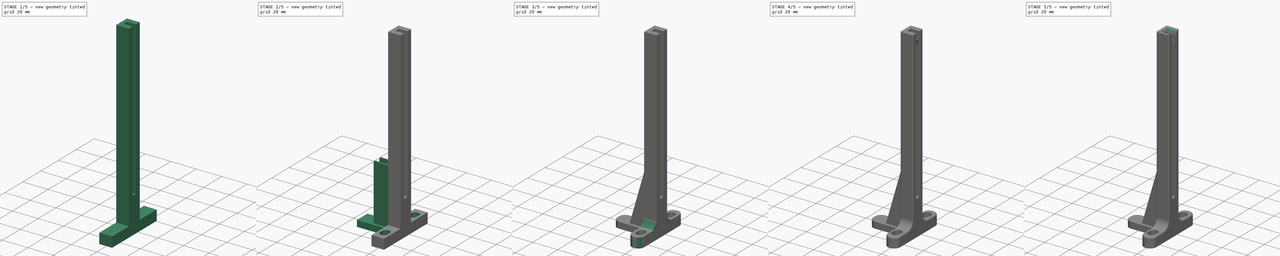
[diagram: build sequence overview — one tinted view per stage of 5, left to right]
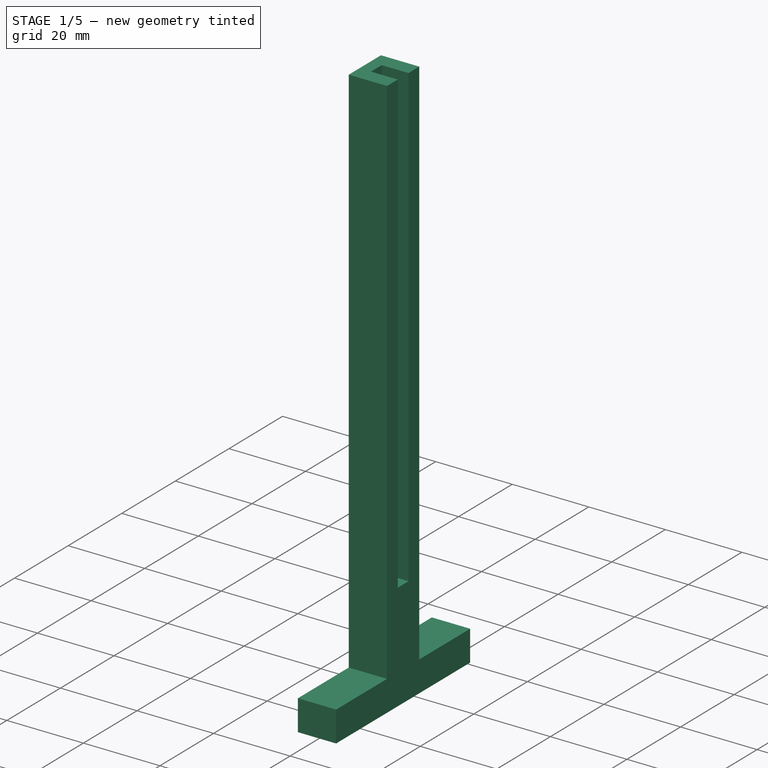
[diagram: stage 1 of 5 — iso view after this stage's code; geometry added in this stage tinted green]
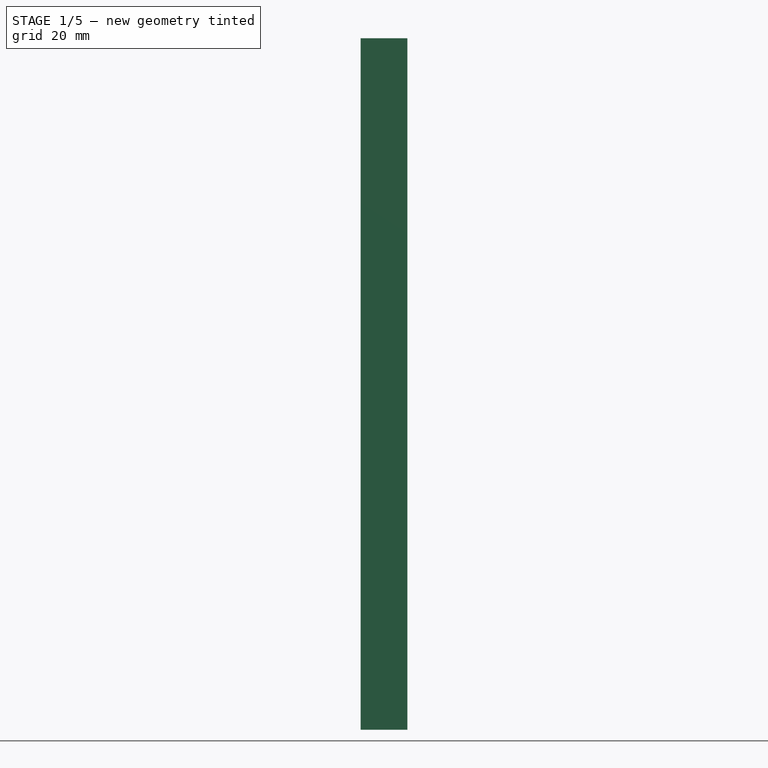
[diagram: stage 1 of 5 — front view after this stage's code; geometry added in this stage tinted green]
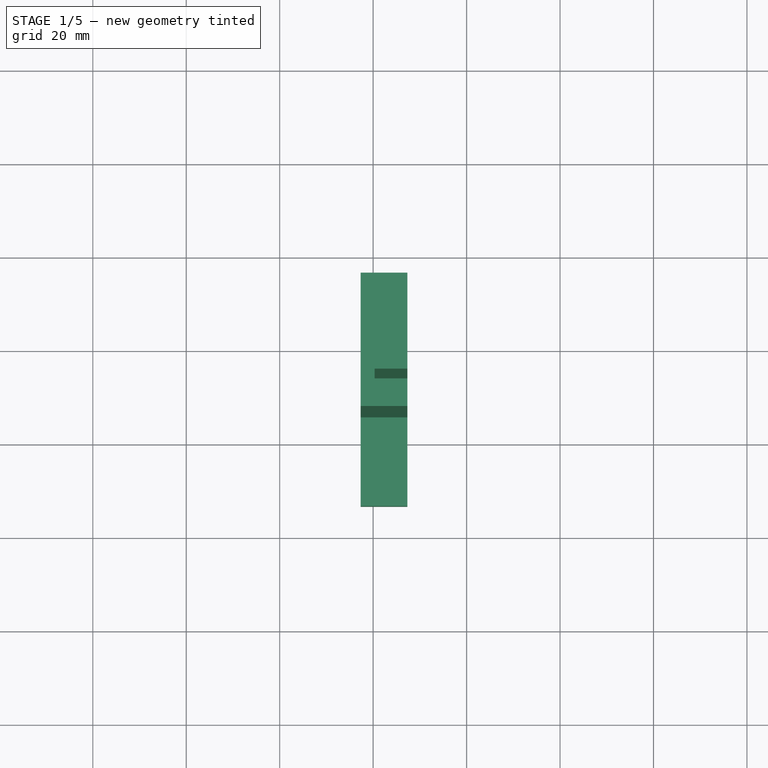
[diagram: stage 1 of 5 — top view after this stage's code; geometry added in this stage tinted green]
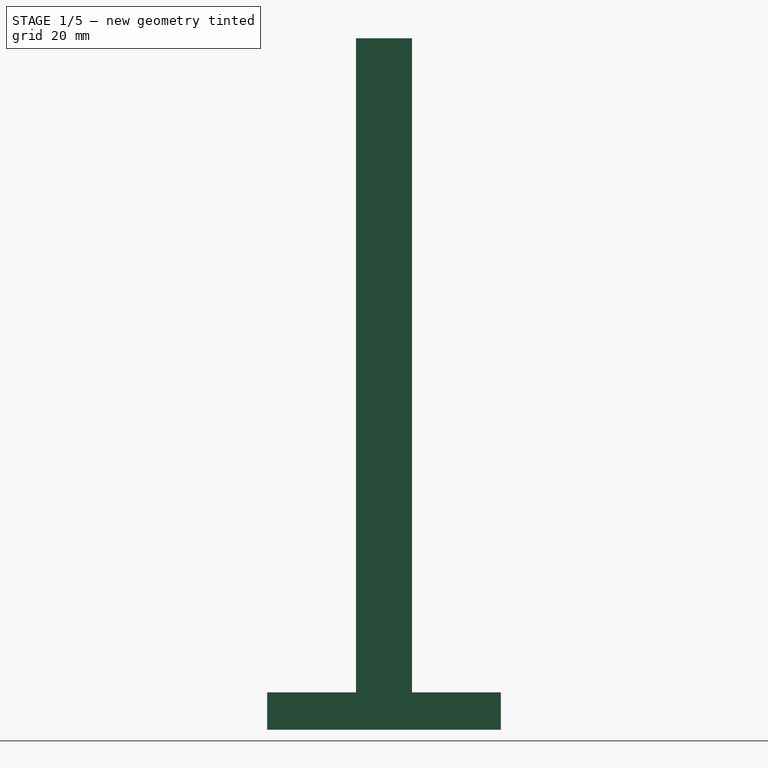
[diagram: stage 1 of 5 — right view after this stage's code; geometry added in this stage tinted green]
FCSTD DOCUMENT  (FreeCAD 0.19R24415 (Git))
Label: FCC22
License: All rights reserved
LicenseURL: http://en.wikipedia.org/wiki/All_rights_reserved
objects: Sketcher::SketchObject×8, PartDesign::Fillet×7, PartDesign::Pad×5, PartDesign::Pocket×3, PartDesign::Body×1
note: 39 computed .brp shape members not serialized (recipe doc carries the construction recipe); baked Part::Feature solids carry a one-line shape summary decoded from their .brp

FEATURE [Sketcher::SketchObject] Sketch
  FullyConstrained = false
  MapMode = 5
  Support = -> [XY_Plane]
  sketch-geometry (4):
    g0: LineSegment StartX=-22.6766 StartY=36.728 StartZ=0 EndX=-12.6766 EndY=36.728 EndZ=0
    g1: LineSegment StartX=-12.6766 StartY=36.728 StartZ=0 EndX=-12.6766 EndY=-13.272 EndZ=0
    g2: LineSegment StartX=-12.6766 StartY=-13.272 StartZ=0 EndX=-22.6766 EndY=-13.272 EndZ=0
    g3: LineSegment StartX=-22.6766 StartY=-13.272 StartZ=0 EndX=-22.6766 EndY=36.728 EndZ=0
  constraints (10):
    c: Coincident(g0,g1)
    c: Coincident(g1,g2)
    c: Coincident(g2,g3)
    c: Coincident(g3,g0)
    c: Horizontal(g0)
    c: Horizontal(g2)
    c: Vertical(g1)
    c: Vertical(g3)
    c: DistanceY(g3,g3) = 50
    c: DistanceX(g0,g0) = 10
FEATURE [PartDesign::Pad] Pad
  Direction = (1,1,1)
  Length = 8
  Length2 = 100
  Profile = -> Sketch
  Type = 0
FEATURE [Sketcher::SketchObject] Sketch001
  ExternalGeometry = -> [Pad]
  FullyConstrained = true
  MapMode = 5
  Placement = pos=(0,0,8) rot=(0,0,1;0rad)
  Support = -> [Pad]
  sketch-geometry (4):
    g0: LineSegment StartX=-22.6766 StartY=17.728 StartZ=0 EndX=-12.6766 EndY=17.728 EndZ=0
    g1: LineSegment StartX=-12.6766 StartY=17.728 StartZ=0 EndX=-12.6766 EndY=5.728 EndZ=0
    g2: LineSegment StartX=-12.6766 StartY=5.728 StartZ=0 EndX=-22.6766 EndY=5.728 EndZ=0
    g3: LineSegment StartX=-22.6766 StartY=5.728 StartZ=0 EndX=-22.6766 EndY=17.728 EndZ=0
  constraints (12):
    c: Coincident(g0,g1)
    c: Coincident(g1,g2)
    c: Coincident(g2,g3)
    c: Coincident(g3,g0)
    c: Horizontal(g0)
    c: Horizontal(g2)
    c: Vertical(g1)
    c: Vertical(g3)
    c: PointOnObject(g0,g-3)
    c: PointOnObject(g1,g-4)
    c: DistanceY(g0,g-5) = 19
    c: DistanceY(g-6,g2) = 19
FEATURE [PartDesign::Pad] Pad001
  BaseFeature = -> Pad
  Direction = (1,1,1)
  Length = 140
  Length2 = 100
  Profile = -> Sketch001
  Type = 0
FEATURE [Sketcher::SketchObject] Sketch002
  ExternalGeometry = -> [Pad001]
  FullyConstrained = true
  MapMode = 5
  Placement = pos=(-12.6766,0,0) rot=(0.57735,0.57735,0.57735;2.0944rad)
  Support = -> [Pad001]
  sketch-geometry (4):
    g0: LineSegment StartX=9.728 StartY=148 StartZ=0 EndX=13.728 EndY=148 EndZ=0
    g1: LineSegment StartX=13.728 StartY=148 StartZ=0 EndX=13.728 EndY=28 EndZ=0
    g2: LineSegment StartX=13.728 StartY=28 StartZ=0 EndX=9.728 EndY=28 EndZ=0
    g3: LineSegment StartX=9.728 StartY=28 StartZ=0 EndX=9.728 EndY=148 EndZ=0
  constraints (13):
    c: Coincident(g0,g1)
    c: Coincident(g1,g2)
    c: Coincident(g2,g3)
    c: Coincident(g3,g0)
    c: Horizontal(g0)
    c: Horizontal(g2)
    c: Vertical(g1)
    c: Vertical(g3)
    c: PointOnObject(g0,g-3)
    c: DistanceX(g-6,g0) = 4
    c: DistanceX(g0,g-5) = 4
    c: DistanceX(g-6,g-5) = 12
    c: DistanceY(g2,g-6) = -20
FEATURE [PartDesign::Pocket] Pocket
  BaseFeature = -> Pad001
  Length = 7
  Length2 = 100
  Profile = -> Sketch002
  Type = 0
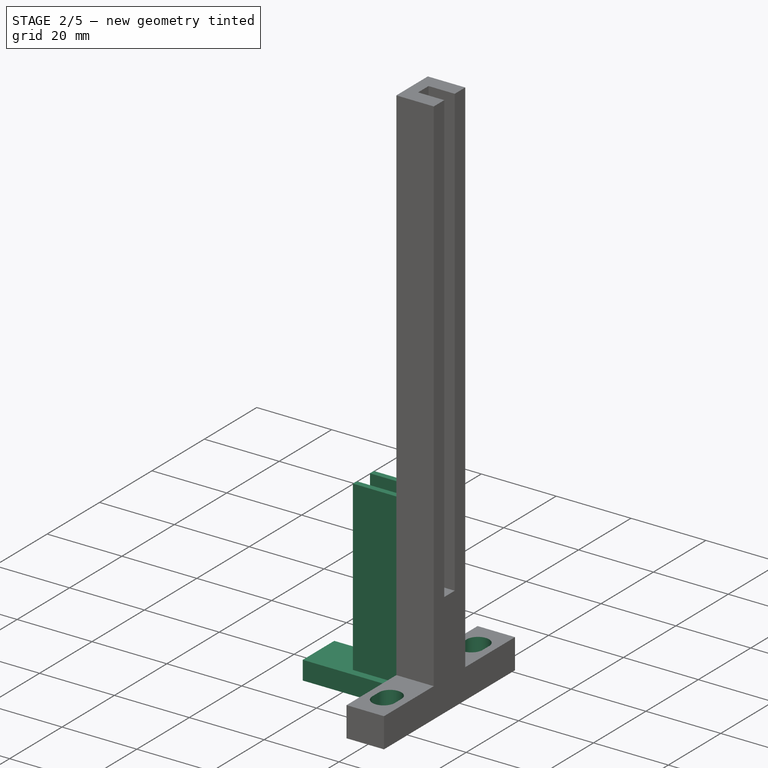
[diagram: stage 2 of 5 — iso view after this stage's code; geometry added in this stage tinted green]
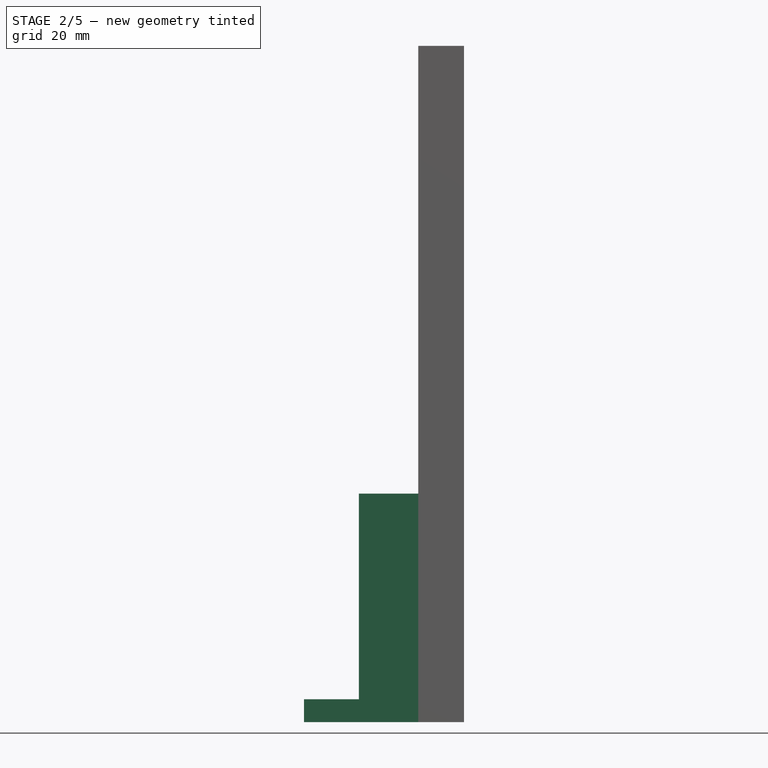
[diagram: stage 2 of 5 — front view after this stage's code; geometry added in this stage tinted green]
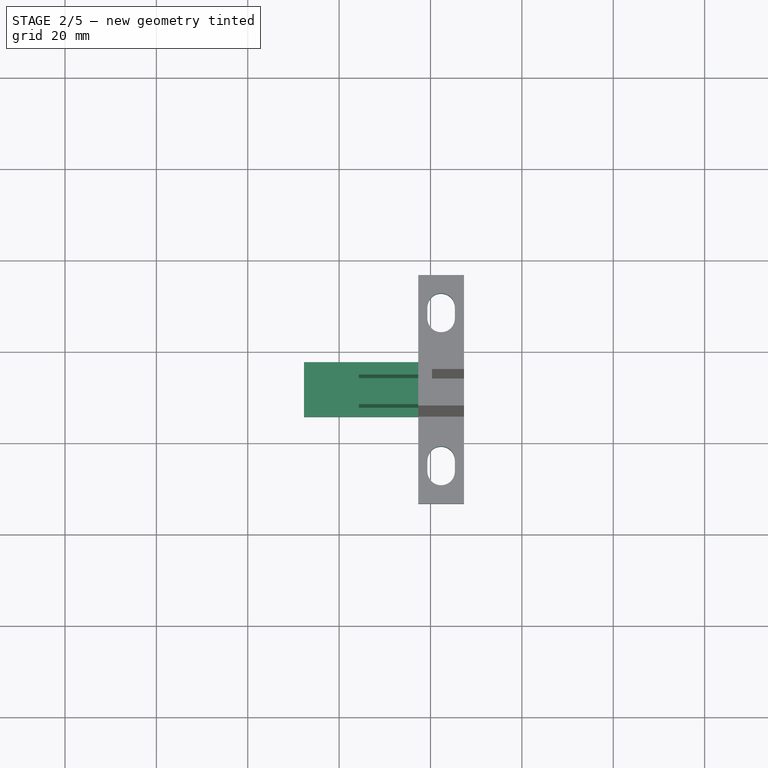
[diagram: stage 2 of 5 — top view after this stage's code; geometry added in this stage tinted green]
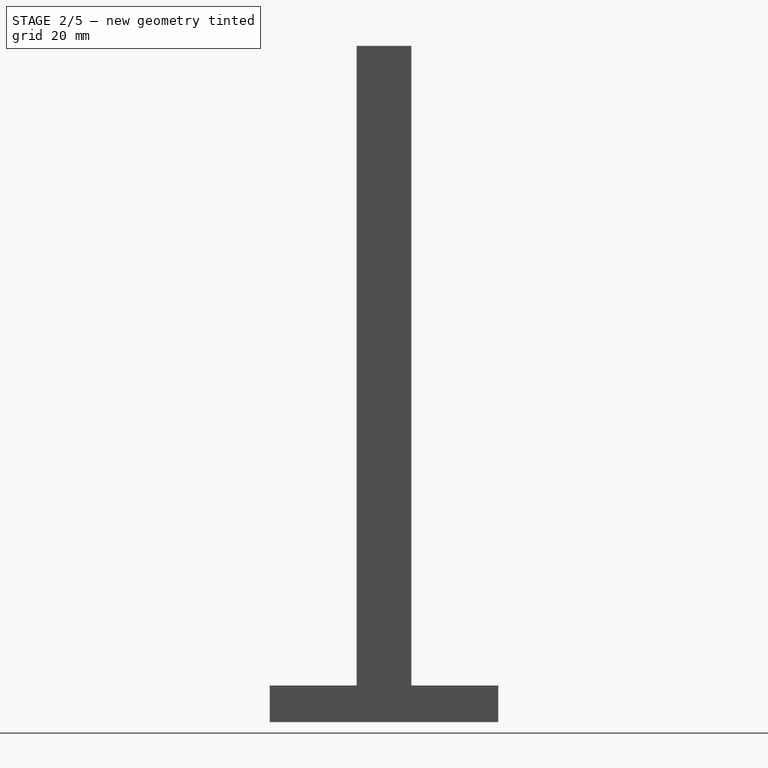
[diagram: stage 2 of 5 — right view after this stage's code; geometry added in this stage tinted green]
FEATURE [Sketcher::SketchObject] Sketch003
  ExternalGeometry = -> [Pocket]
  FullyConstrained = true
  MapMode = 5
  Placement = pos=(0,0,8) rot=(0,0,1;0rad)
  Support = -> [Pocket]
  sketch-geometry (11):
    g0: GeomPoint X=-22.6766 Y=11.728 Z=0
    g1: GeomPoint X=-12.6766 Y=11.728 Z=0
    g2: GeomPoint X=-17.6766 Y=11.728 Z=0
    g3: ArcOfCircle CenterX=-17.6766 CenterY=-3.772 CenterZ=0 NormalX=0 NormalY=0 NormalZ=1 AngleXU=0 Radius=3 StartAngle=-2.7e-15 EndAngle=3.14159
    g4: ArcOfCircle CenterX=-17.6766 CenterY=-6.272 CenterZ=0 NormalX=0 NormalY=0 NormalZ=1 AngleXU=0 Radius=3 StartAngle=3.14159 EndAngle=6.28319
    g5: LineSegment StartX=-20.6766 StartY=-3.772 StartZ=0 EndX=-20.6766 EndY=-6.272 EndZ=0
    g6: LineSegment StartX=-14.6766 StartY=-3.772 StartZ=0 EndX=-14.6766 EndY=-6.272 EndZ=0
    g7: ArcOfCircle CenterX=-17.6766 CenterY=29.728 CenterZ=0 NormalX=0 NormalY=0 NormalZ=1 AngleXU=0 Radius=3 StartAngle=1.9e-15 EndAngle=3.14159
    g8: ArcOfCircle CenterX=-17.6766 CenterY=27.228 CenterZ=0 NormalX=0 NormalY=0 NormalZ=1 AngleXU=0 Radius=3 StartAngle=3.14159 EndAngle=6.28319
    g9: LineSegment StartX=-20.6766 StartY=29.728 StartZ=0 EndX=-20.6766 EndY=27.228 EndZ=0
    g10: LineSegment StartX=-14.6766 StartY=29.728 StartZ=0 EndX=-14.6766 EndY=27.228 EndZ=0
  constraints (22):
    c: Symmetric(g-6,g-6,g0)
    c: Symmetric(g-5,g-5,g1)
    c: Symmetric(g0,g1,g2)
    c: Tangent(g3,g6) = 1.5708
    c: Tangent(g3,g5) = -1.5708
    c: Tangent(g5,g4) = -1.5708
    c: Tangent(g6,g4) = 1.5708
    c: Vertical(g5)
    c: Equal(g3,g4)
    c: Tangent(g7,g10) = 1.5708
    c: Tangent(g7,g9) = -1.5708
    c: Tangent(g9,g8) = -1.5708
    c: Tangent(g10,g8) = 1.5708
    c: Vertical(g9)
    c: Equal(g7,g8)
    c: DistanceY(g3,g8) = 31
    c: DistanceY(g4,g7) = 36
    c: Equal(g10,g6)
    c: Vertical(g8,g2)
    c: DistanceX(g7,g7) = 6
    c: DistanceX(g4,g4) = 6
    c: Symmetric(g8,g3,g2)
FEATURE [PartDesign::Pocket] Pocket001
  BaseFeature = -> Pocket
  Length = 5
  Length2 = 100
  Profile = -> Sketch003
  Type = 1
FEATURE [Sketcher::SketchObject] Sketch004
  ExternalGeometry = -> [Pocket001]
  FullyConstrained = true
  MapMode = 5
  Placement = pos=(-22.6766,0,0) rot=(0.57735,-0.57735,-0.57735;2.0944rad)
  Support = -> [Pocket001]
  sketch-geometry (4):
    g0: LineSegment StartX=-17.728 StartY=5 StartZ=0 EndX=-5.728 EndY=5 EndZ=0
    g1: LineSegment StartX=-5.728 StartY=5 StartZ=0 EndX=-5.728 EndY=0 EndZ=0
    g2: LineSegment StartX=-5.728 StartY=0 StartZ=0 EndX=-17.728 EndY=0 EndZ=0
    g3: LineSegment StartX=-17.728 StartY=0 StartZ=0 EndX=-17.728 EndY=5 EndZ=0
  constraints (12):
    c: Coincident(g0,g1)
    c: Coincident(g1,g2)
    c: Coincident(g2,g3)
    c: Coincident(g3,g0)
    c: Horizontal(g0)
    c: Horizontal(g2)
    c: Vertical(g1)
    c: Vertical(g3)
    c: PointOnObject(g2,g-1)
    c: DistanceY(g1,g0) = 5
    c: Vertical(g-3,g0)
    c: Vertical(g-3,g0)
FEATURE [PartDesign::Pad] Pad002
  BaseFeature = -> Pocket001
  Direction = (1,1,1)
  Length = 25
  Length2 = 100
  Profile = -> Sketch004
  Type = 0
FEATURE [Sketcher::SketchObject] Sketch005
  ExternalGeometry = -> [Pad002]
  FullyConstrained = true
  MapMode = 5
  Placement = pos=(-22.6766,0,0) rot=(0.57735,-0.57735,-0.57735;2.0944rad)
  Support = -> [Pad002]
  sketch-geometry (8):
    g0: LineSegment StartX=-9.228 StartY=50 StartZ=0 EndX=-7.728 EndY=50 EndZ=0
    g1: LineSegment StartX=-7.728 StartY=50 StartZ=0 EndX=-7.728 EndY=5 EndZ=0
    g2: LineSegment StartX=-7.728 StartY=5 StartZ=0 EndX=-9.228 EndY=5 EndZ=0
    g3: LineSegment StartX=-9.228 StartY=5 StartZ=0 EndX=-9.228 EndY=50 EndZ=0
    g4: LineSegment StartX=-15.728 StartY=50 StartZ=0 EndX=-14.228 EndY=50 EndZ=0
    g5: LineSegment StartX=-14.228 StartY=50 StartZ=0 EndX=-14.228 EndY=5 EndZ=0
    g6: LineSegment StartX=-14.228 StartY=5 StartZ=0 EndX=-15.728 EndY=5 EndZ=0
    g7: LineSegment StartX=-15.728 StartY=5 StartZ=0 EndX=-15.728 EndY=50 EndZ=0
  constraints (24):
    c: Coincident(g0,g1)
    c: Coincident(g1,g2)
    c: Coincident(g2,g3)
    c: Coincident(g3,g0)
    c: Horizontal(g0)
    c: Horizontal(g2)
    c: Vertical(g1)
    c: Vertical(g3)
    c: Coincident(g4,g5)
    c: Coincident(g5,g6)
    c: Coincident(g6,g7)
    c: Coincident(g7,g4)
    c: Horizontal(g4)
    c: Horizontal(g6)
    c: Vertical(g5)
    c: Vertical(g7)
    c: Horizontal(g4,g0)
    c: DistanceX(g-3,g6) = 2
    c: DistanceX(g4,g4) = 1.5
    c: DistanceX(g0,g0) = 1.5
    c: DistanceY(g5,g4) = 45
    c: PointOnObject(g5,g-4)
    c: PointOnObject(g1,g-4)
    c: DistanceX(g1,g-4) = 2
FEATURE [PartDesign::Pad] Pad003
  BaseFeature = -> Pad002
  Direction = (1,1,1)
  Length = 13
  Length2 = 100
  Profile = -> Sketch005
  Type = 0
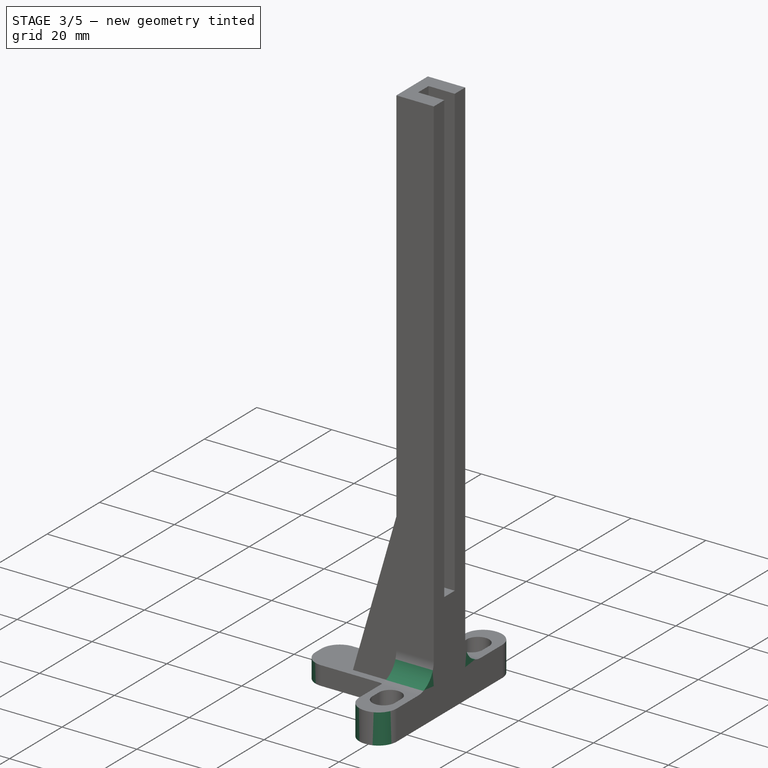
[diagram: stage 3 of 5 — iso view after this stage's code; geometry added in this stage tinted green]
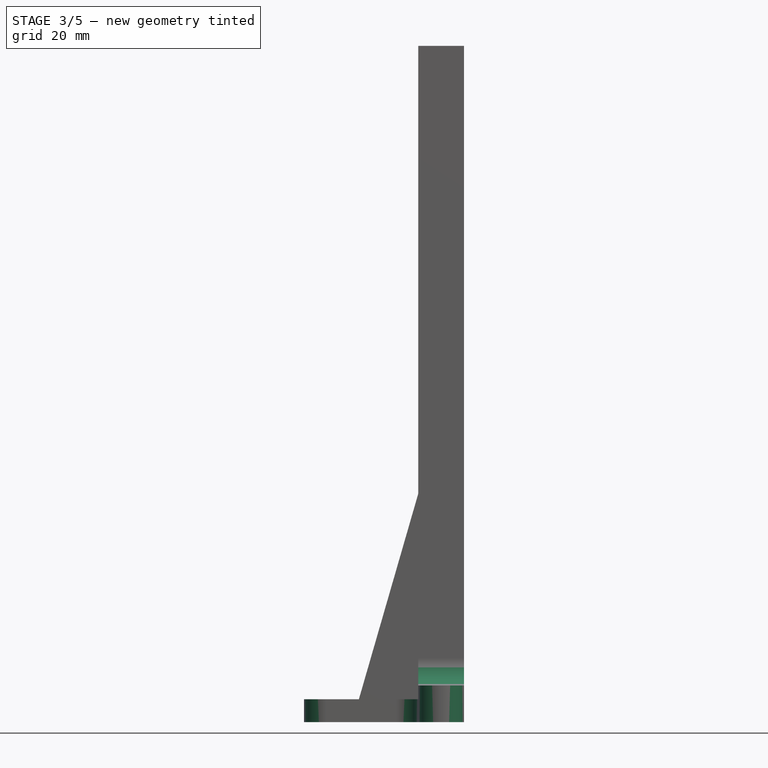
[diagram: stage 3 of 5 — front view after this stage's code; geometry added in this stage tinted green]
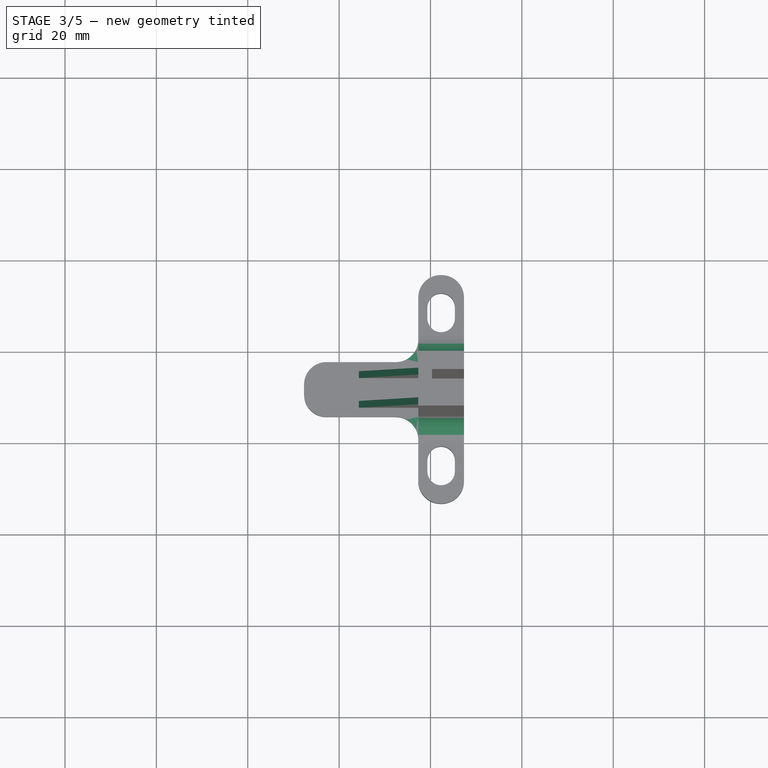
[diagram: stage 3 of 5 — top view after this stage's code; geometry added in this stage tinted green]
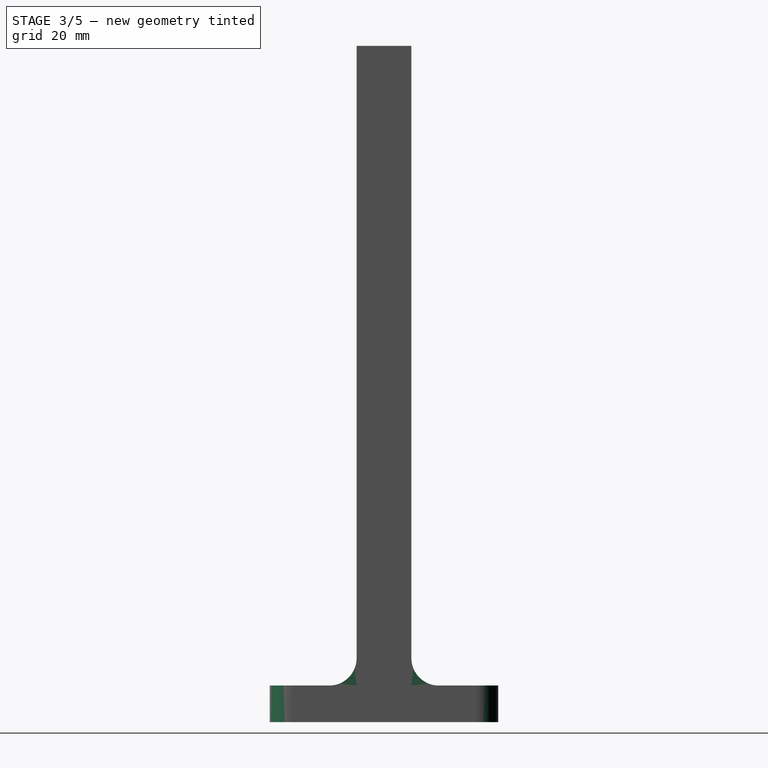
[diagram: stage 3 of 5 — right view after this stage's code; geometry added in this stage tinted green]
FEATURE [Sketcher::SketchObject] Sketch006
  ExternalGeometry = -> [Pad003]
  FullyConstrained = true
  MapMode = 5
  Placement = pos=(0,7.728,0) rot=(1,0,0;1.5708rad)
  Support = -> [Pad003]
  sketch-geometry (3):
    g0: LineSegment StartX=-35.6766 StartY=5 StartZ=0 EndX=-22.6766 EndY=50 EndZ=0
    g1: LineSegment StartX=-35.6766 StartY=50 StartZ=0 EndX=-22.6766 EndY=50 EndZ=0
    g2: LineSegment StartX=-35.6766 StartY=50 StartZ=0 EndX=-35.6766 EndY=5 EndZ=0
  constraints (6):
    c: Coincident(g0,g-4)
    c: Coincident(g0,g-3)
    c: Coincident(g1,g-4)
    c: Coincident(g1,g0)
    c: Coincident(g2,g1)
    c: Coincident(g2,g0)
FEATURE [PartDesign::Pocket] Pocket002
  BaseFeature = -> Pad003
  Length = 5
  Length2 = 100
  Profile = -> Sketch006
  Type = 1
FEATURE [PartDesign::Fillet] Fillet
  Base = -> Pocket002 [Edge2,Edge1,Edge6,Edge37,Edge79,Edge57,Edge42,Edge11]
  BaseFeature = -> Pocket002
  Radius = 4.9
  SupportTransform = false
FEATURE [PartDesign::Fillet] Fillet001
  Base = -> Fillet [Edge86,Edge29]
  BaseFeature = -> Fillet
  Radius = 6
  SupportTransform = false
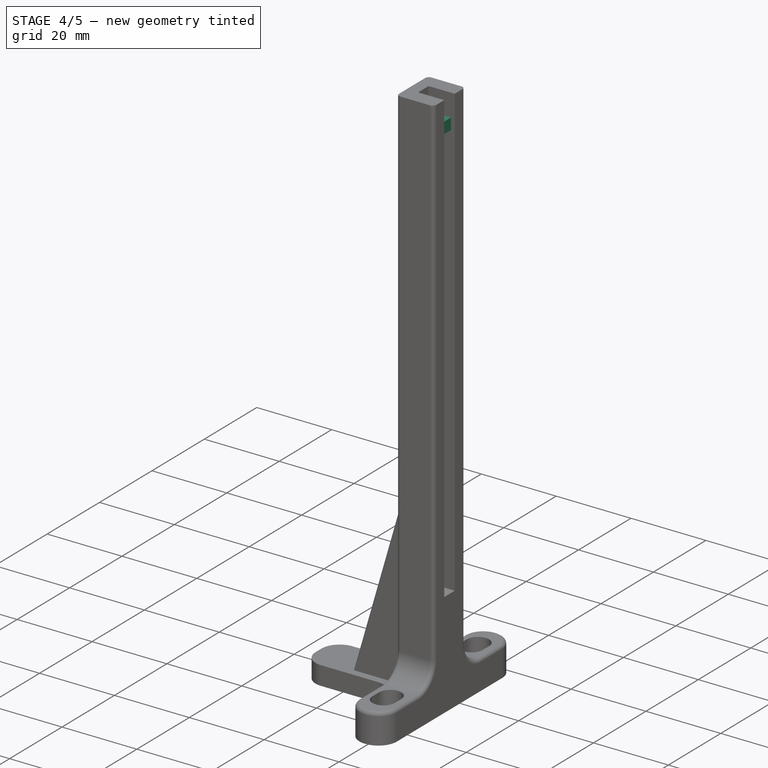
[diagram: stage 4 of 5 — iso view after this stage's code; geometry added in this stage tinted green]
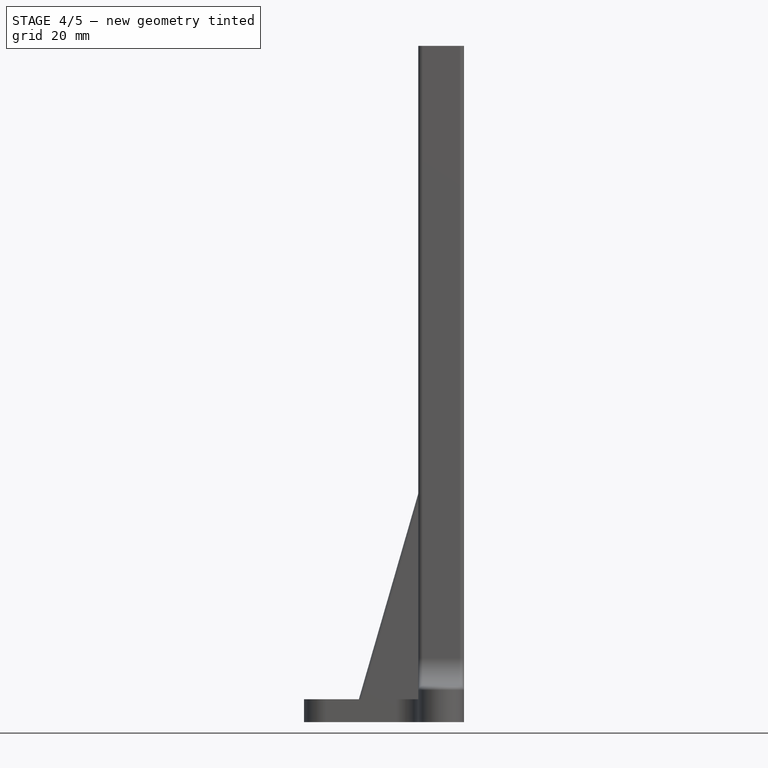
[diagram: stage 4 of 5 — front view after this stage's code; geometry added in this stage tinted green]
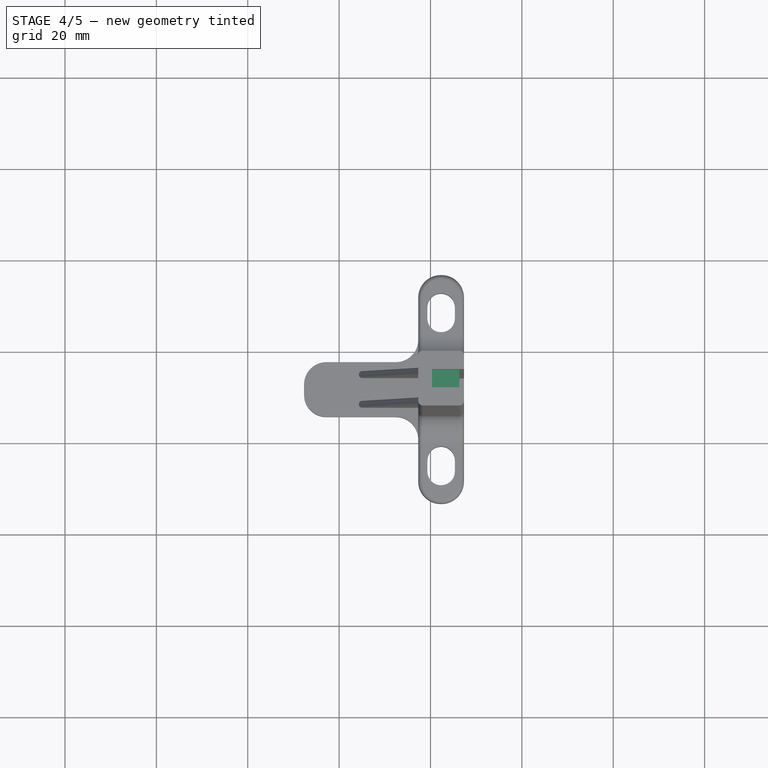
[diagram: stage 4 of 5 — top view after this stage's code; geometry added in this stage tinted green]
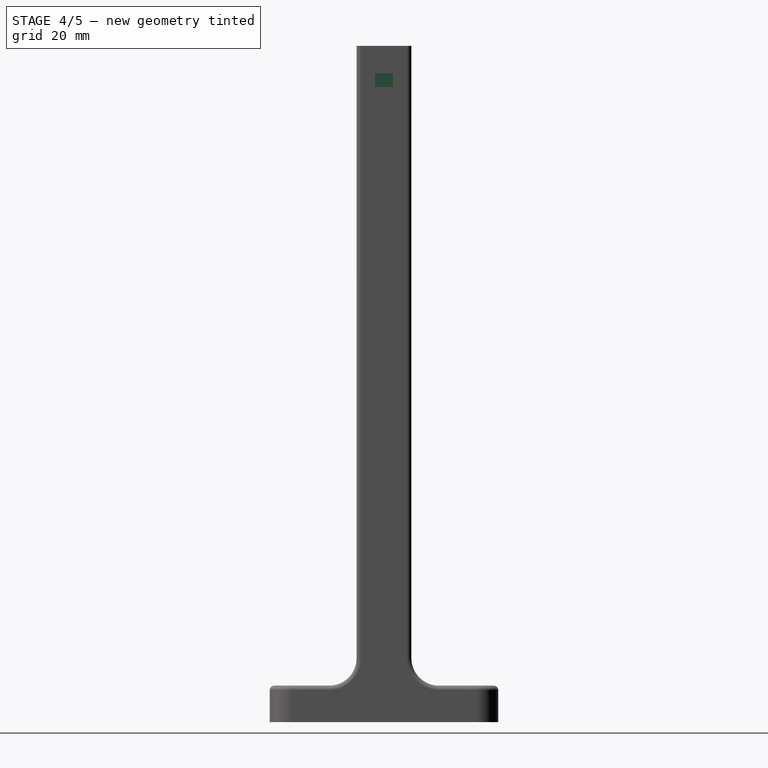
[diagram: stage 4 of 5 — right view after this stage's code; geometry added in this stage tinted green]
FEATURE [PartDesign::Fillet] Fillet002
  Base = -> Fillet001 [Edge130,Edge131,Edge108,Edge56]
  BaseFeature = -> Fillet001
  Radius = 0.7
  SupportTransform = false
FEATURE [PartDesign::Fillet] Fillet003
  Base = -> Fillet002 [Edge28,Edge32]
  BaseFeature = -> Fillet002
  Radius = 1
  SupportTransform = false
FEATURE [Sketcher::SketchObject] Sketch007
  ExternalGeometry = -> [Fillet003]
  FullyConstrained = true
  MapMode = 5
  Placement = pos=(-19.6766,0,0) rot=(0.57735,0.57735,0.57735;2.0944rad)
  Support = -> [Fillet003]
  sketch-geometry (4):
    g0: LineSegment StartX=9.728 StartY=142 StartZ=0 EndX=13.728 EndY=142 EndZ=0
    g1: LineSegment StartX=13.728 StartY=142 StartZ=0 EndX=13.728 EndY=139 EndZ=0
    g2: LineSegment StartX=13.728 StartY=139 StartZ=0 EndX=9.728 EndY=139 EndZ=0
    g3: LineSegment StartX=9.728 StartY=139 StartZ=0 EndX=9.728 EndY=142 EndZ=0
  constraints (12):
    c: Coincident(g0,g1)
    c: Coincident(g1,g2)
    c: Coincident(g2,g3)
    c: Coincident(g3,g0)
    c: Horizontal(g0)
    c: Horizontal(g2)
    c: Vertical(g1)
    c: Vertical(g3)
    c: PointOnObject(g0,g-4)
    c: PointOnObject(g1,g-3)
    c: DistanceY(g1,g1) = 3
    c: DistanceY(g0,g-3) = 6
FEATURE [PartDesign::Pad] Pad004
  BaseFeature = -> Fillet003
  Direction = (1,1,1)
  Length = 6
  Length2 = 100
  Profile = -> Sketch007
  Type = 0
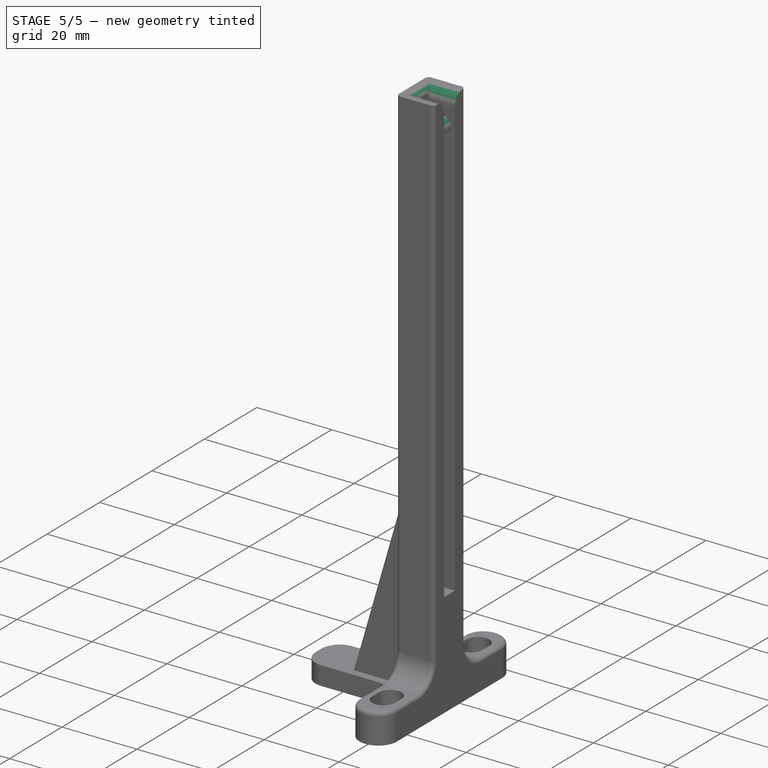
[diagram: stage 5 of 5 — iso view after this stage's code; geometry added in this stage tinted green]
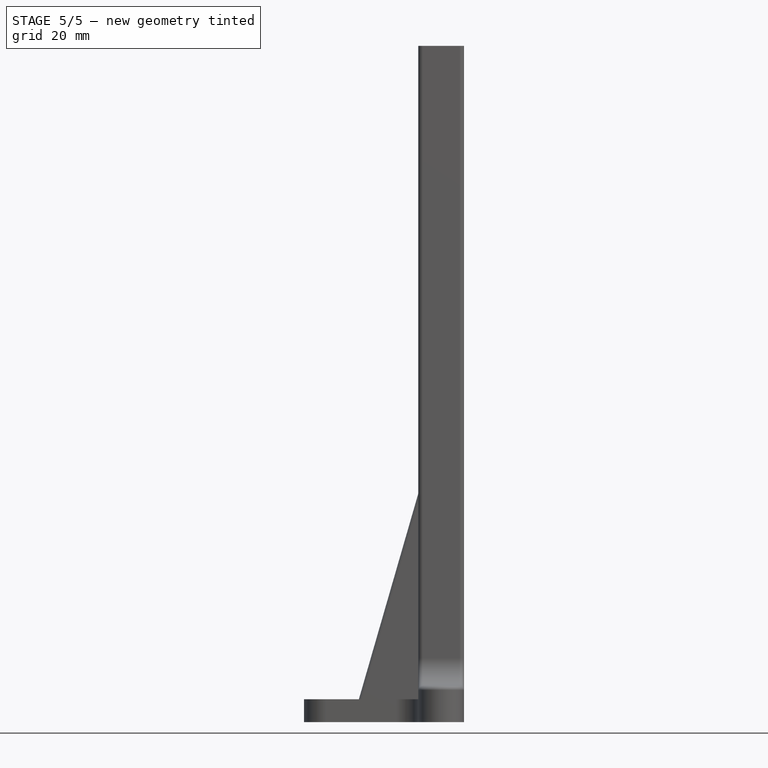
[diagram: stage 5 of 5 — front view after this stage's code; geometry added in this stage tinted green]
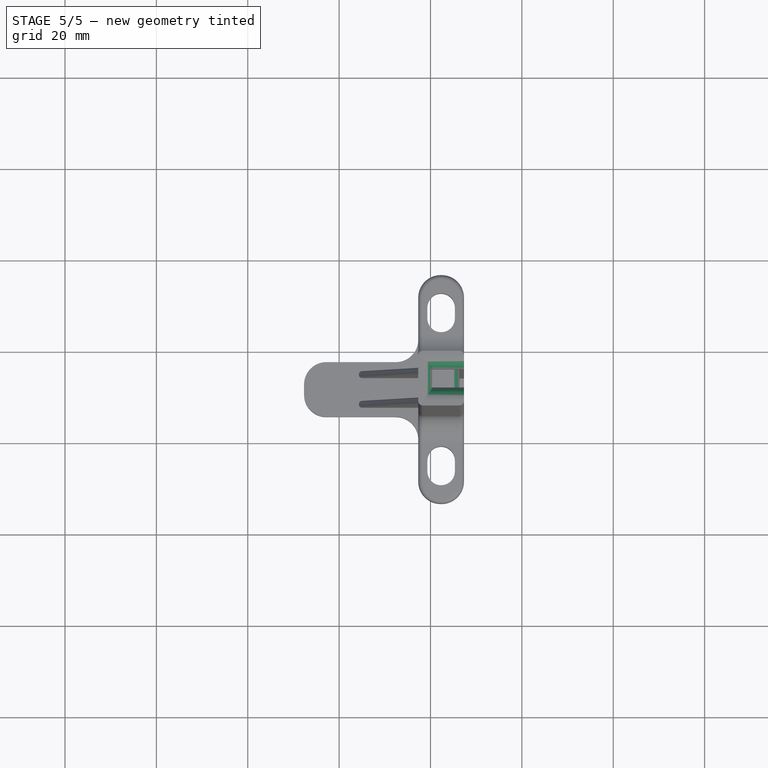
[diagram: stage 5 of 5 — top view after this stage's code; geometry added in this stage tinted green]
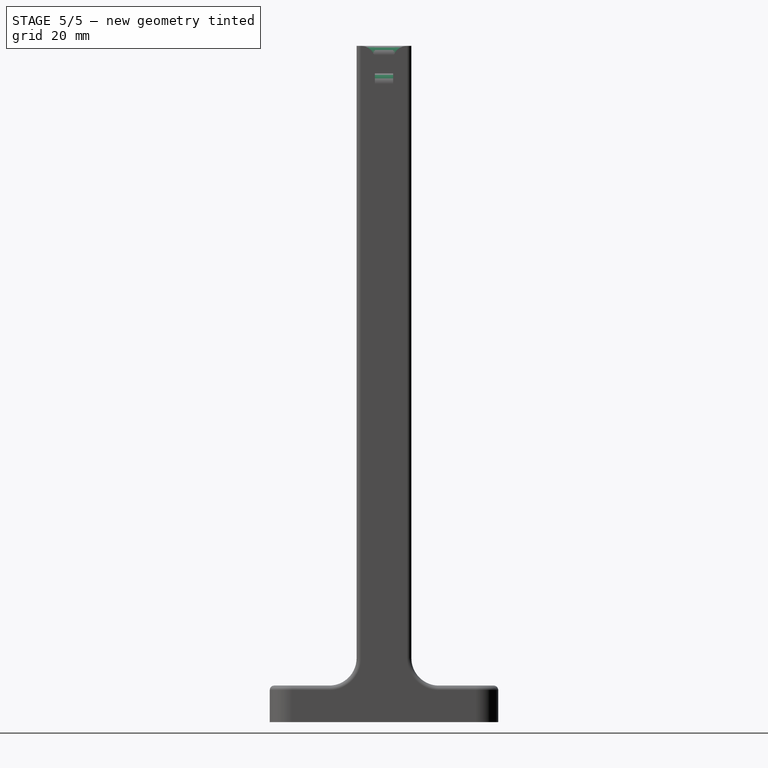
[diagram: stage 5 of 5 — right view after this stage's code; geometry added in this stage tinted green]
FEATURE [PartDesign::Fillet] Fillet004
  Base = -> Pad004 [Edge223]
  BaseFeature = -> Pad004
  Radius = 2.3
  SupportTransform = false
FEATURE [PartDesign::Fillet] Fillet005
  Base = -> Fillet004 [Edge5,Edge28]
  BaseFeature = -> Fillet004
  Radius = 3
  SupportTransform = false
FEATURE [PartDesign::Fillet] Fillet006
  Base = -> Fillet005 [Edge14]
  BaseFeature = -> Fillet005
  Radius = 2
  SupportTransform = false
FEATURE [PartDesign::Body] Body  label="main"
  Group = -> [Sketch,Pad,Sketch001,Pad001,Sketch002,Pocket,Sketch003,Pocket001,Sketch004,Pad002,Sketch005,Pad003,Sketch006,Pocket002,Fillet,Fillet001,Fillet002,Fillet003,Sketch007,Pad004,Fillet004,Fillet005,Fillet006]
  Origin = -> Origin
  Tip = -> Fillet006
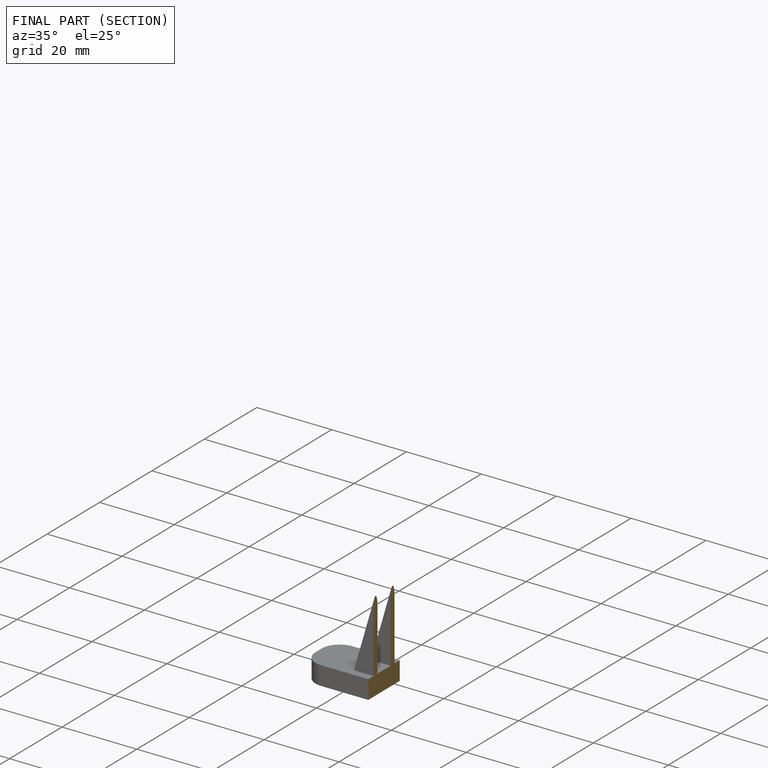
[diagram: finished part — half-section view (interior)]
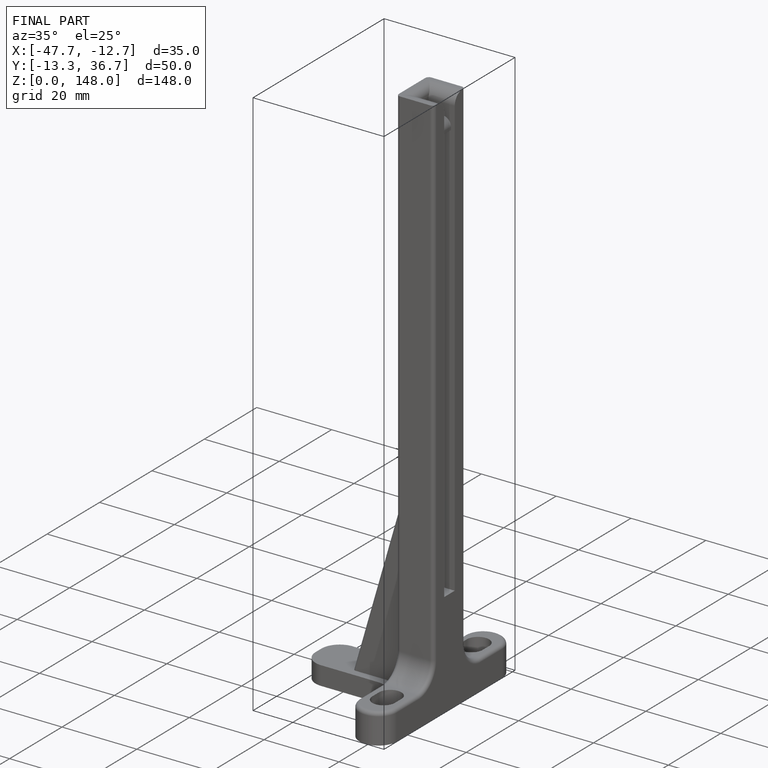
[diagram: finished part — iso view with bounding-box wireframe]
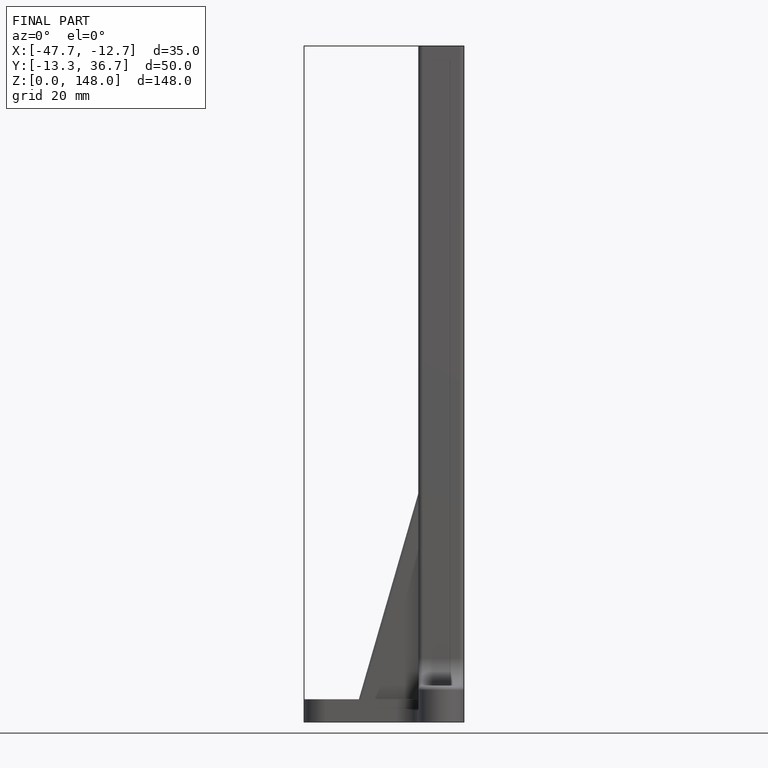
[diagram: finished part — front view with bounding-box wireframe]
